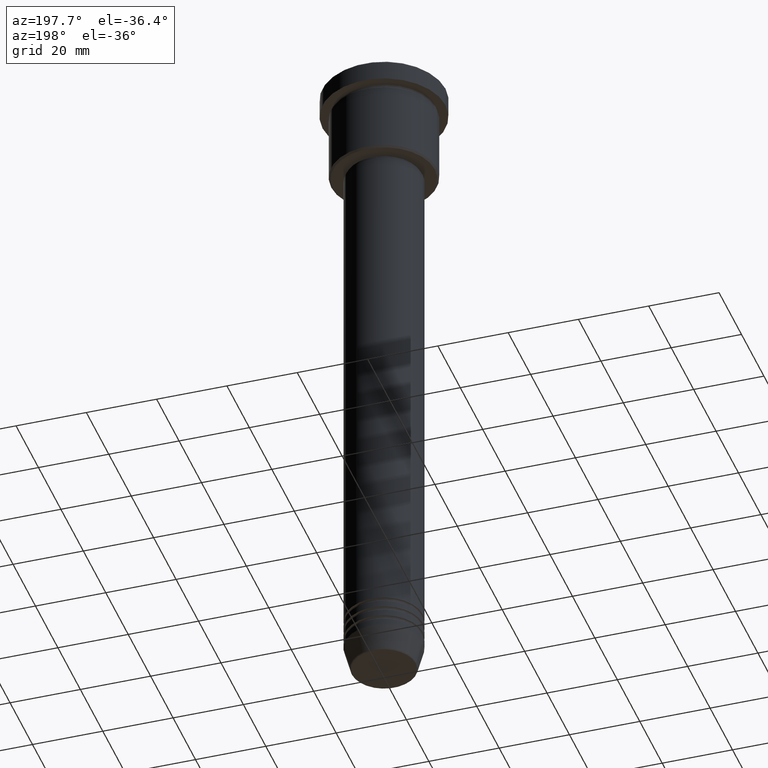
[diagram: clean part render]
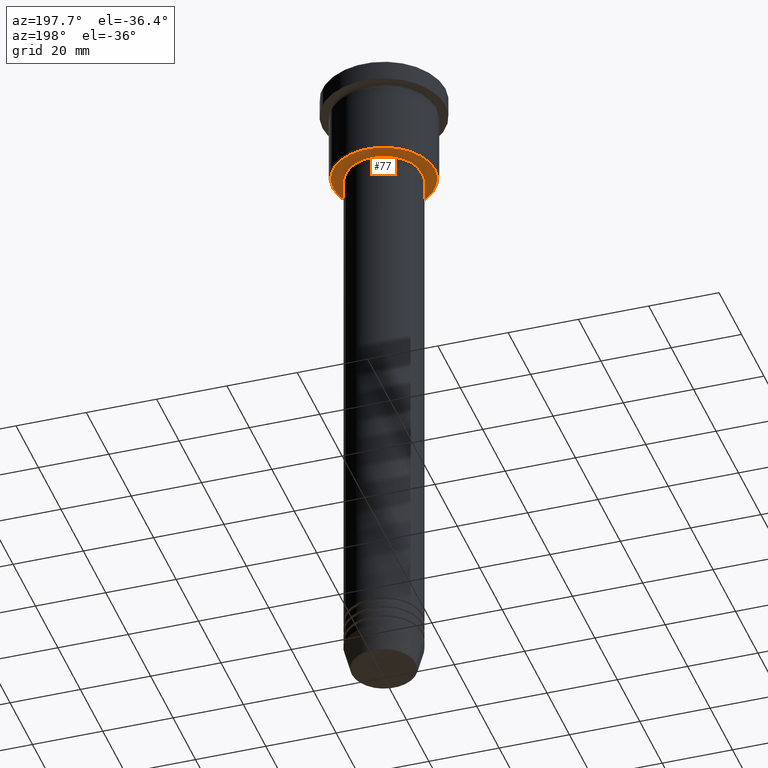
[diagram: same view with one face highlighted and labeled with its STEP entity id]
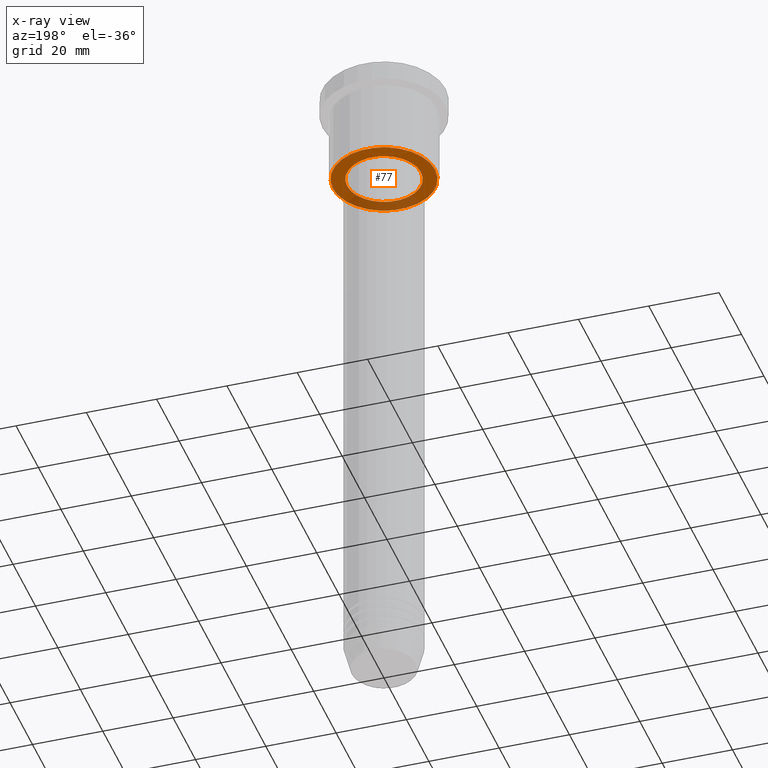
[diagram: x-ray of the same camera — body ghosted, the highlighted face saturated]
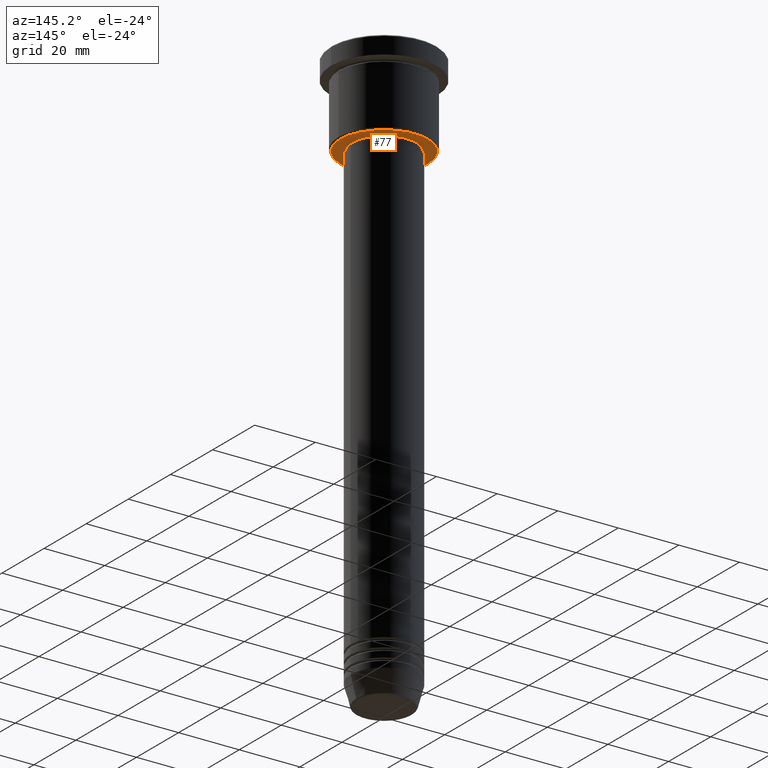
[diagram: same view with one face highlighted and labeled with its STEP entity id]
A machine part, auxiliary view. The second image highlights one B-rep face of the part: STEP entity #77.
The next image is the same camera in x-ray: the body ghosted, the highlighted face saturated — about 24% of this face is hidden behind the body in this view.
A second angle (auxiliary view) of the same face is appended — the face is thin or edge-on in the first view.
In plain terms, the highlighted planar face has unit normal (0, 0, -1).
Its self-contained STEP definition (entity closure, byte-faithful):
#22 = ORIENTED_EDGE ( 'NONE', *, *, #223, .T. ) ;
#29 = CARTESIAN_POINT ( 'NONE',  ( 0.000000000000000000, 15.00000000000000000, -26.99999999999999645 ) ) ;
#42 = DIRECTION ( 'NONE',  ( -1.000000000000000000, 0.000000000000000000, 0.000000000000000000 ) ) ;
#67 = CIRCLE ( 'NONE', #731, 10.49999999999999822 ) ;
#68 = CIRCLE ( 'NONE', #222, 10.49999999999999822 ) ;
#77 = ADVANCED_FACE ( 'NONE', ( #1032, #668 ), #215, .T. ) ;
#121 = VERTEX_POINT ( 'NONE', #696 ) ;
#130 = AXIS2_PLACEMENT_3D ( 'NONE', #796, #355, #342 ) ;
#173 = EDGE_CURVE ( 'NONE', #121, #1086, #272, .T. ) ;
#183 = ORIENTED_EDGE ( 'NONE', *, *, #338, .T. ) ;
#189 = VERTEX_POINT ( 'NONE', #512 ) ;
#215 = PLANE ( 'NONE',  #924 ) ;
#222 = AXIS2_PLACEMENT_3D ( 'NONE', #767, #678, #1046 ) ;
#223 = EDGE_CURVE ( 'NONE', #189, #458, #67, .T. ) ;
#244 = EDGE_LOOP ( 'NONE', ( #793, #22 ) ) ;
#272 = CIRCLE ( 'NONE', #292, 14.49999999999995737 ) ;
#292 = AXIS2_PLACEMENT_3D ( 'NONE', #778, #405, #42 ) ;
#338 = EDGE_CURVE ( 'NONE', #1086, #121, #1081, .T. ) ;
#342 = DIRECTION ( 'NONE',  ( -1.000000000000000000, 0.000000000000000000, 0.000000000000000000 ) ) ;
#355 = DIRECTION ( 'NONE',  ( 0.000000000000000000, 0.000000000000000000, -1.000000000000000000 ) ) ;
#365 = DIRECTION ( 'NONE',  ( 1.000000000000000000, 0.000000000000000000, 0.000000000000000000 ) ) ;
#392 = DIRECTION ( 'NONE',  ( 0.000000000000000000, 0.000000000000000000, -1.000000000000000000 ) ) ;
#405 = DIRECTION ( 'NONE',  ( 0.000000000000000000, 0.000000000000000000, -1.000000000000000000 ) ) ;
#417 = DIRECTION ( 'NONE',  ( -1.000000000000000000, 0.000000000000000000, -0.000000000000000000 ) ) ;
#419 = CARTESIAN_POINT ( 'NONE',  ( 14.49999999999995737, 0.000000000000000000, -26.99999999999999645 ) ) ;
#443 = ORIENTED_EDGE ( 'NONE', *, *, #173, .T. ) ;
#458 = VERTEX_POINT ( 'NONE', #1108 ) ;
#512 = CARTESIAN_POINT ( 'NONE',  ( -10.49999999999999822, 1.285879139104720633E-15, -27.00000000000000000 ) ) ;
#554 = EDGE_CURVE ( 'NONE', #458, #189, #68, .T. ) ;
#668 = FACE_BOUND ( 'NONE', #244, .T. ) ;
#678 = DIRECTION ( 'NONE',  ( -0.000000000000000000, -0.000000000000000000, 1.000000000000000000 ) ) ;
#696 = CARTESIAN_POINT ( 'NONE',  ( -14.49999999999995737, 1.806354028742343435E-15, -26.99999999999999645 ) ) ;
#706 = CARTESIAN_POINT ( 'NONE',  ( 0.000000000000000000, 0.000000000000000000, -27.00000000000000000 ) ) ;
#731 = AXIS2_PLACEMENT_3D ( 'NONE', #706, #802, #365 ) ;
#767 = CARTESIAN_POINT ( 'NONE',  ( 0.000000000000000000, 0.000000000000000000, -27.00000000000000000 ) ) ;
#778 = CARTESIAN_POINT ( 'NONE',  ( 0.000000000000000000, 0.000000000000000000, -26.99999999999999645 ) ) ;
#793 = ORIENTED_EDGE ( 'NONE', *, *, #554, .T. ) ;
#796 = CARTESIAN_POINT ( 'NONE',  ( 0.000000000000000000, 0.000000000000000000, -26.99999999999999645 ) ) ;
#802 = DIRECTION ( 'NONE',  ( -0.000000000000000000, -0.000000000000000000, 1.000000000000000000 ) ) ;
#924 = AXIS2_PLACEMENT_3D ( 'NONE', #29, #392, #417 ) ;
#1032 = FACE_OUTER_BOUND ( 'NONE', #1179, .T. ) ;
#1046 = DIRECTION ( 'NONE',  ( 1.000000000000000000, 0.000000000000000000, 0.000000000000000000 ) ) ;
#1081 = CIRCLE ( 'NONE', #130, 14.49999999999995737 ) ;
#1086 = VERTEX_POINT ( 'NONE', #419 ) ;
#1108 = CARTESIAN_POINT ( 'NONE',  ( 10.49999999999999822, 0.000000000000000000, -27.00000000000000000 ) ) ;
#1179 = EDGE_LOOP ( 'NONE', ( #183, #443 ) ) ;